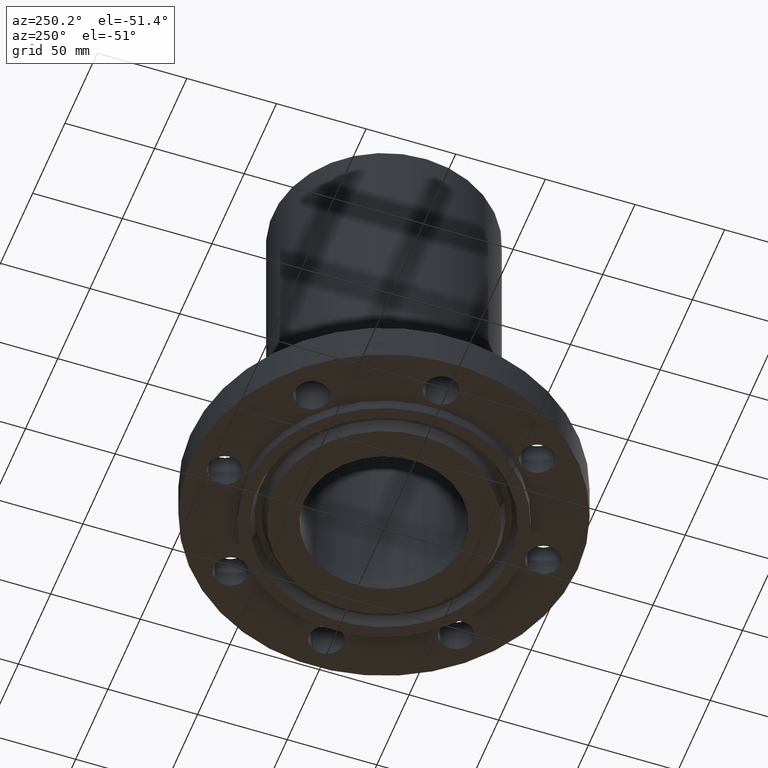
[diagram: clean part render]
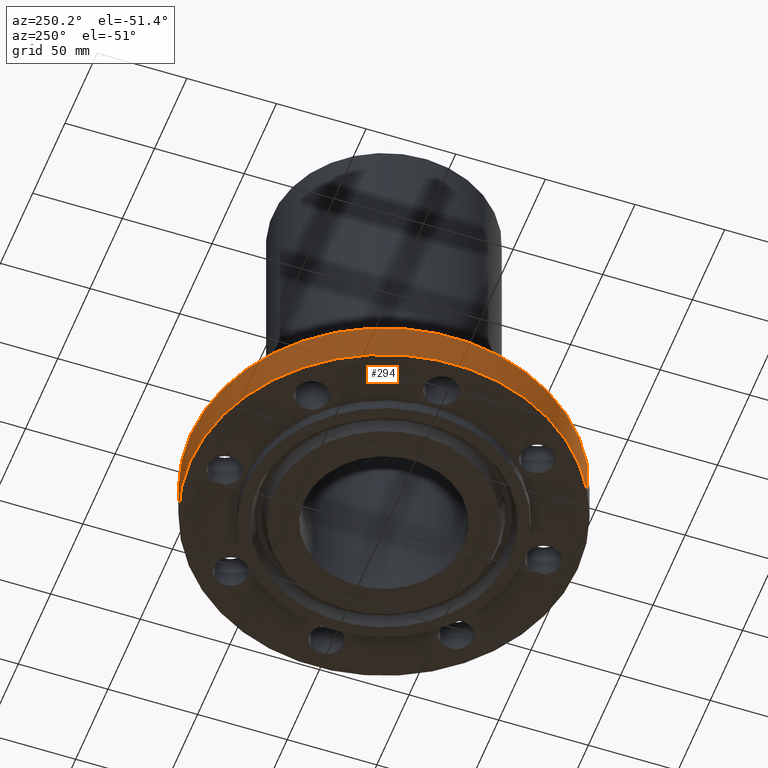
[diagram: same view with one face highlighted and labeled with its STEP entity id]
A machine part, auxiliary view. The second image highlights one B-rep face of the part: STEP entity #294.
In plain terms, the highlighted cylindrical surface (partial cylindrical patch) has radius 107.95 mm, axis along (0, 0, -1).
Its self-contained STEP definition (entity closure, byte-faithful):
#82=AXIS2_PLACEMENT_3D('Circle Axis2P3D',#80,#81,$) ;
#267=AXIS2_PLACEMENT_3D('Cylinder Axis2P3D',#264,#265,#266) ;
#278=AXIS2_PLACEMENT_3D('Circle Axis2P3D',#276,#277,$) ;
#80=CARTESIAN_POINT('Axis2P3D Location',(0.,0.,0.)) ;
#84=CARTESIAN_POINT('Vertex',(-2.03755853908,-3.72972588805,5.59482469102E-016)) ;
#86=CARTESIAN_POINT('Vertex',(2.03755853908,3.72972588805,5.59482469102E-016)) ;
#264=CARTESIAN_POINT('Axis2P3D Location',(0.,0.,4.34375000002)) ;
#269=CARTESIAN_POINT('Line Origine',(-2.03755853908,-3.72972588805,0.438750000002)) ;
#273=CARTESIAN_POINT('Vertex',(-2.03755853908,-3.72972588805,0.877500000004)) ;
#276=CARTESIAN_POINT('Axis2P3D Location',(0.,0.,0.877500000004)) ;
#280=CARTESIAN_POINT('Vertex',(2.03755853908,3.72972588805,0.877500000004)) ;
#283=CARTESIAN_POINT('Line Origine',(2.03755853908,3.72972588805,0.438750000002)) ;
#81=DIRECTION('Axis2P3D Direction',(0.,0.,-0.0393700787402)) ;
#265=DIRECTION('Axis2P3D Direction',(0.,0.,-0.0393700787402)) ;
#266=DIRECTION('Axis2P3D XDirection',(0.0188750212049,0.0345504945626,0.)) ;
#270=DIRECTION('Vector Direction',(0.,0.,-0.0393700787402)) ;
#277=DIRECTION('Axis2P3D Direction',(0.,0.,-0.0393700787402)) ;
#284=DIRECTION('Vector Direction',(0.,0.,-0.0393700787402)) ;
#271=VECTOR('Line Direction',#270,0.0393700787402) ;
#285=VECTOR('Line Direction',#284,0.0393700787402) ;
#289=ORIENTED_EDGE('',*,*,#88,.F.) ;
#290=ORIENTED_EDGE('',*,*,#275,.T.) ;
#291=ORIENTED_EDGE('',*,*,#282,.T.) ;
#292=ORIENTED_EDGE('',*,*,#287,.F.) ;
#294=ADVANCED_FACE('PartBody',(#293),#268,.T.) ;
#83=CIRCLE('generated circle',#82,4.25000000002) ;
#279=CIRCLE('generated circle',#278,4.25000000002) ;
#268=CYLINDRICAL_SURFACE('generated cylinder',#267,4.25000000002) ;
#88=EDGE_CURVE('',#85,#87,#83,.T.) ;
#275=EDGE_CURVE('',#85,#274,#272,.F.) ;
#282=EDGE_CURVE('',#274,#281,#279,.T.) ;
#287=EDGE_CURVE('',#87,#281,#286,.F.) ;
#288=EDGE_LOOP('',(#289,#290,#291,#292)) ;
#293=FACE_OUTER_BOUND('',#288,.T.) ;
#272=LINE('Line',#269,#271) ;
#286=LINE('Line',#283,#285) ;
#85=VERTEX_POINT('',#84) ;
#87=VERTEX_POINT('',#86) ;
#274=VERTEX_POINT('',#273) ;
#281=VERTEX_POINT('',#280) ;